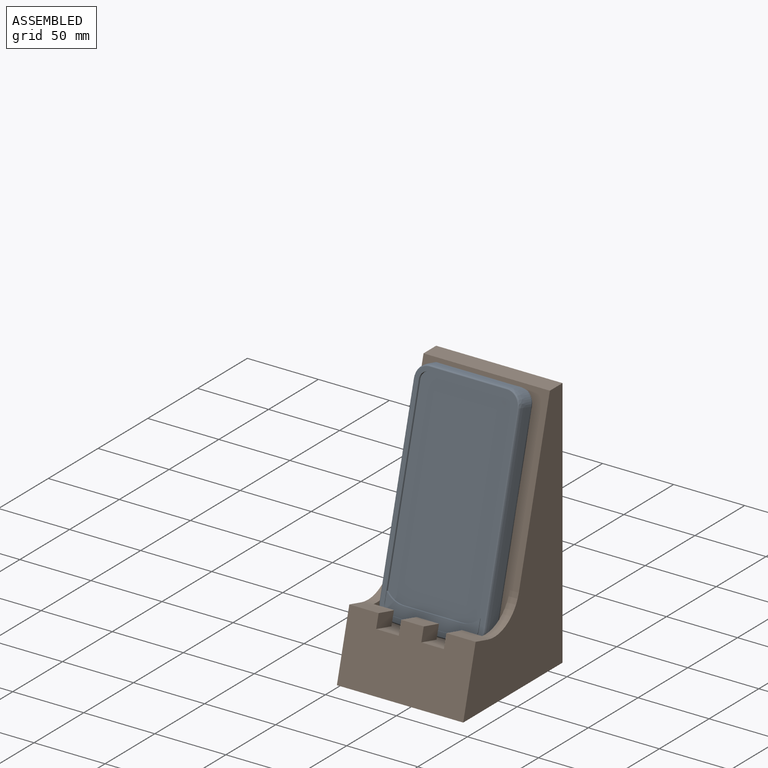
[diagram: assembled view]
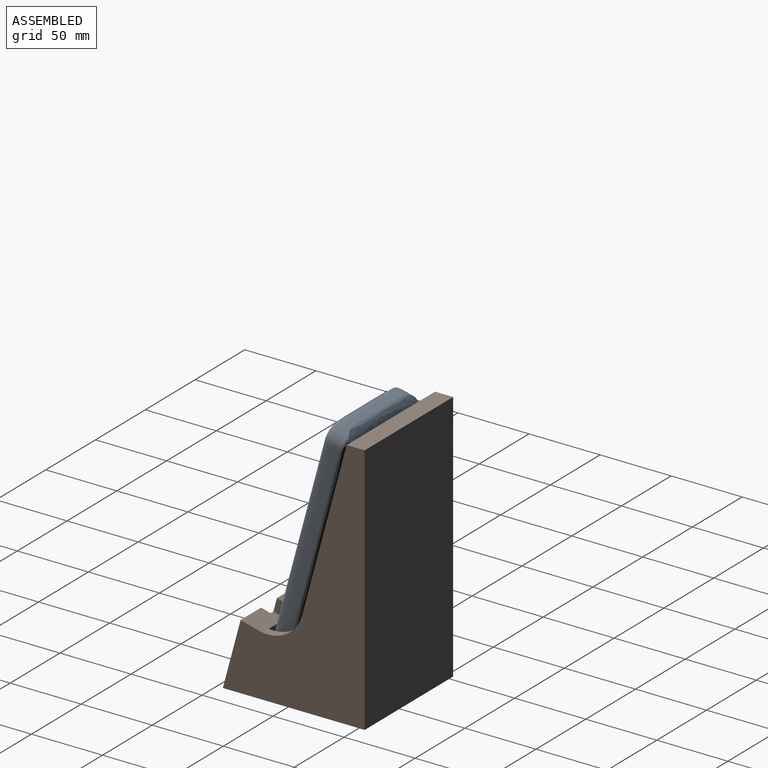
[diagram: assembled view, second angle]
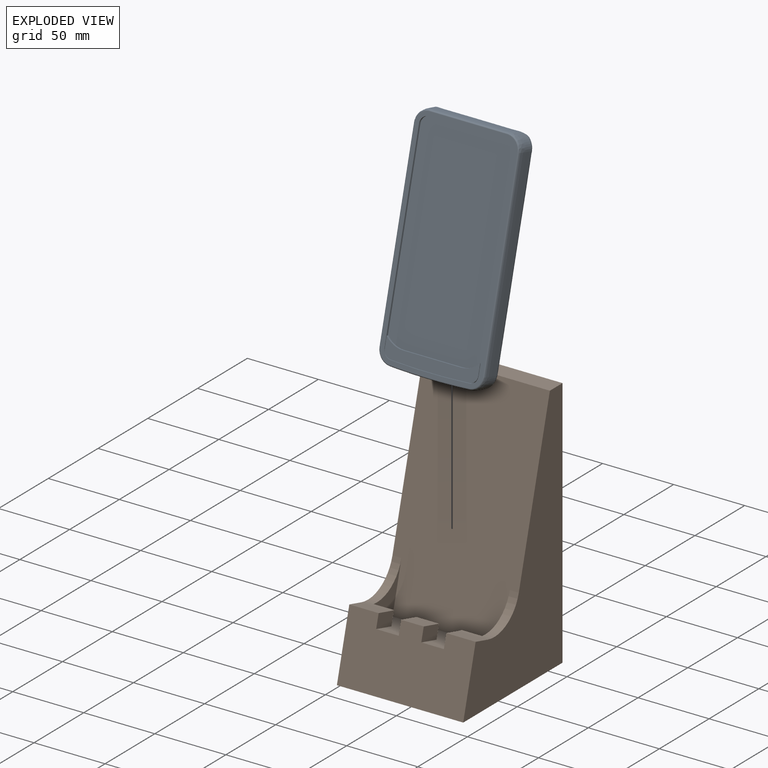
[diagram: exploded view]
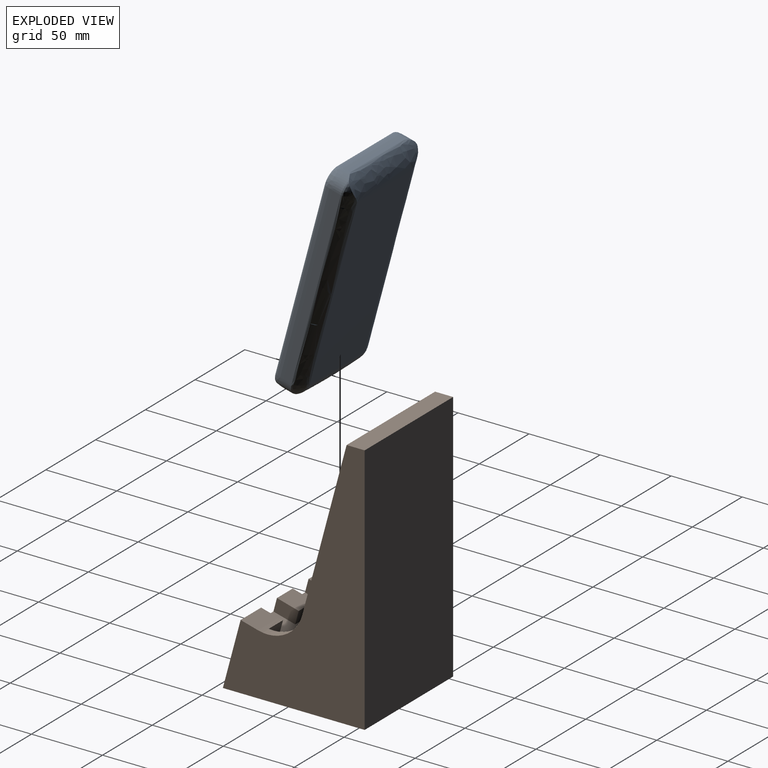
[diagram: exploded view, second angle]
ASSEMBLY  parts=2 mates=2
PART A: 51 faces, bbox 167.6x19.1x155.8 mm
  f0: cylinder r=461.27mm len=55.84mm, axis (0,1,0), area 302.4mm2, adj f11,f12,f17,f41,f44,f45,f46,f47
  f1: plane 54.61x2.54mm, normal (0,0,1), area 138.7mm2, adj f2,f3,f21,f43
  f2: cylinder r=10.16mm len=10.16mm, axis (0,1,0), area 82.4mm2, adj f1,f5,f9,f14,f43
  f3: cylinder r=10.16mm len=10.16mm, axis (0,1,0), area 82.4mm2, adj f1,f6,f13,f20,f43
  f4: bspline ~134.05x9.53mm, area 1611.9mm2, adj f5,f8,f9,f42,f43
  f5: bspline ~10.16x10.16mm, area 41.8mm2, adj f2,f4,f43
  f6: bspline ~10.16x10.16mm, area 41.8mm2, adj f3,f7,f43
  f7: bspline ~134.05x9.53mm, area 1611.9mm2, adj f6,f8,f13,f40,f43
  f8: plane 129.95x55.9mm, normal (0,1,0), area 7236.6mm2, adj f4,f7,f40,f41,f42,f43
  f9: plane 134.05x5.72mm, normal (-1,0,0), area 766.1mm2, adj f2,f4,f11,f15
  f10: plane 146.56x66.29mm, normal (0,-1,0), area 9112.3mm2, adj f23,f24,f25,f26,f27,f28,f29,f30
  f11: cylinder r=10.16mm len=10.14mm, axis (0,1,0), area 87.7mm2, adj f0,f9,f16,f42
  f12: cylinder r=10.16mm len=10.14mm, axis (0,1,0), area 87.7mm2, adj f0,f13,f18,f40
  f13: plane 134.05x5.72mm, normal (1,0,0), area 766.1mm2, adj f3,f7,f12,f19
  f14: bspline ~10.16x10.16mm, area 112.2mm2, adj f2,f15,f21,f22
  f15: bspline ~134.05x6.73mm, area 962.8mm2, adj f9,f14,f16,f22
  f16: bspline ~10.14x9.62mm, area 107.9mm2, adj f11,f15,f17,f22
  f17: bspline ~55.84x6.73mm, area 401.1mm2, adj f0,f16,f18,f22
  f18: bspline ~10.14x9.62mm, area 107.9mm2, adj f12,f17,f19,f22
  f19: bspline ~134.05x6.73mm, area 962.8mm2, adj f13,f18,f20,f22
  f20: bspline ~10.16x10.16mm, area 112.2mm2, adj f3,f19,f21,f22
  f21: bspline ~54.61x6.73mm, area 392.2mm2, adj f1,f14,f20,f22
  f22: plane 152.94x72.67mm, normal (0,-1,0), area 1291.2mm2, adj f14,f15,f16,f17,f18,f19,f20,f21
  f23: cylinder r=5.84mm len=5.84mm, axis (0,-1,0), area 14mm2, adj f10,f22,f24,f30
  f24: plane 134.05x1.52mm, normal (1,0,0), area 204.3mm2, adj f10,f22,f23,f25
  f25: cylinder r=5.84mm len=5.83mm, axis (0,-1,0), area 13.4mm2, adj f10,f22,f24,f26
  f26: cylinder r=456.95mm len=55.32mm, axis (0,-1,0), area 84.4mm2, adj f10,f22,f25,f27
  f27: cylinder r=5.84mm len=5.83mm, axis (0,-1,0), area 13.4mm2, adj f10,f22,f26,f28
  f28: plane 134.05x1.52mm, normal (-1,0,0), area 204.3mm2, adj f10,f22,f27,f29
  f29: cylinder r=5.84mm len=5.84mm, axis (0,-1,0), area 14mm2, adj f10,f22,f28,f30
  f30: plane 54.61x1.52mm, normal (0,0,-1), area 83.2mm2, adj f10,f22,f23,f29
  f31: plane 65.79x13.92mm, normal (0,-1,0), area 549.8mm2, adj f32,f33,f34,f35,f36,f37,f38,f39
  f32: plane 7.51x1.52mm, normal (-1,0,0), area 11.4mm2, adj f10,f31,f33,f38
  f33: cylinder r=5.59mm len=5.58mm, axis (0,1,0), area 12.9mm2, adj f10,f31,f32,f34
  f34: cylinder r=456.7mm len=55.29mm, axis (0,1,0), area 84.3mm2, adj f10,f31,f33,f35
  f35: cylinder r=5.59mm len=5.58mm, axis (0,1,0), area 12.9mm2, adj f10,f31,f34,f36
  f36: plane 7.51x1.52mm, normal (1,0,0), area 11.4mm2, adj f10,f31,f35,f37
  f37: cylinder r=17.07mm len=12.7mm, axis (0,1,0), area 21.8mm2, adj f10,f31,f36,f39
  f38: cylinder r=17.07mm len=12.7mm, axis (0,1,0), area 21.8mm2, adj f10,f31,f32,f39
  f39: plane 40.39x1.52mm, normal (0,0,1), area 61.5mm2, adj f10,f31,f37,f38
  f40: bspline ~23.45x15.88mm, area 110.6mm2, adj f7,f8,f12,f41
  f41: bspline ~167.32x20.61mm, area 669.7mm2, adj f0,f8,f40,f42
  f42: bspline ~15.88x10.16mm, area 110.6mm2, adj f4,f8,f11,f41
  f43: extruded ~67.83x15.88mm, area 1245.4mm2, adj f1,f2,f3,f4,f5,f6,f7,f8
  f44: plane 6.34x1.78mm, normal (1,0,0), area 11.3mm2, adj f0,f45,f49,f50
  f45: plane 7.24x6.35mm, normal (0,1,0), area 45.9mm2, adj f0,f44,f46,f50
  f46: plane 6.34x1.78mm, normal (-1,0,0), area 11.3mm2, adj f0,f45,f47,f50
  f47: plane 6.34x0.83mm, normal (-0.61,-0.79,0), area 6.6mm2, adj f0,f46,f48,f50
  f48: plane 6.35x5.59mm, normal (0,-1,0), area 35.5mm2, adj f0,f47,f49,f50
  f49: plane 6.34x0.83mm, normal (0.61,-0.79,0), area 6.6mm2, adj f0,f44,f48,f50
  f50: plane 7.24x2.41mm, normal (0,0,-1), area 16.9mm2, adj f44,f45,f46,f47,f48,f49
PART B: 39 faces, bbox 99.8x88.9x177.8 mm
  f0: plane 99.79x88.9mm, normal (0,0,-1), area 1167.1mm2, adj f8,f9,f10,f11,f22,f30,f31,f32
  f1: plane 15.88x9.2mm, normal (-0.97,0,-0.26), area 151.2mm2, adj f4,f5,f17,f19
  f2: plane 14.29x9.39mm, normal (-0.97,0,-0.26), area 138.9mm2, adj f5,f14,f16,f20
  f3: plane 20.64x12.27mm, normal (-0.26,0,0.97), area 262.1mm2, adj f9,f11,f18,f21
  f4: plane 15.88x15.33mm, normal (-0.26,0,0.97), area 252mm2, adj f1,f9,f17,f19
  f5: plane 76.2x36.8mm, normal (-0.26,0,0.97), area 2197.6mm2, adj f1,f2,f6,f9,f12,f13,f14,f16
  f6: plane 150.27x88.9mm, normal (0.97,0,0.26), area 13387.1mm2, adj f5,f7,f10,f11,f12,f14,f20,f21
  f7: plane 88.9x12.7mm, normal (0,0,1), area 1129mm2, adj f6,f8,f10,f11
  f8: plane 177.8x88.9mm, normal (-1,0,0), area 15806.4mm2, adj f0,f7,f10,f11
  f9: plane 88.9x46.59mm, normal (0.97,0,0.26), area 3985.3mm2, adj f0,f3,f4,f5,f10,f11,f15,f16
  f10: plane 177.8x99.79mm, normal (0,-1,0), area 8275mm2, adj f0,f6,f7,f8,f9,f15,f20
  f11: plane 177.8x99.79mm, normal (0,1,0), area 8275mm2, adj f0,f3,f6,f7,f8,f9,f21
  f12: plane 33.74x30.51mm, normal (0,-1,0), area 349.9mm2, adj f5,f6,f13,f21
  f13: plane 14.29x9.39mm, normal (-0.97,0,-0.26), area 138.9mm2, adj f5,f12,f18,f21
  f14: plane 33.74x30.51mm, normal (0,1,0), area 349.9mm2, adj f2,f5,f6,f20
  f15: plane 20.64x12.27mm, normal (-0.26,0,0.97), area 262.1mm2, adj f9,f10,f16,f20
  f16: plane 17.85x13.31mm, normal (0,1,0), area 151.4mm2, adj f2,f5,f9,f15,f20
  f17: plane 17.8x13.31mm, normal (0,-1,0), area 151.2mm2, adj f1,f4,f5,f9
  f18: plane 17.85x13.31mm, normal (0,-1,0), area 151.4mm2, adj f3,f5,f9,f13,f21
  f19: plane 17.8x13.31mm, normal (0,1,0), area 151.2mm2, adj f1,f4,f5,f9
  f20: cylinder r=25.4mm len=31.11mm, axis (0,1,0), area 298.8mm2, adj f2,f6,f10,f14,f15,f16
  f21: cylinder r=25.4mm len=31.11mm, axis (0,1,0), area 298.8mm2, adj f3,f6,f11,f12,f13,f18
  f22: plane 174.63x93.32mm, normal (0,1,0), area 6540.8mm2, adj f0,f24,f27,f28,f29,f30,f31,f34
  f23: plane 9.53x9.2mm, normal (0.97,0,0.26), area 90.7mm2, adj f26,f27,f36,f38
  f24: plane 14.29x9.2mm, normal (0.97,0,0.26), area 136.1mm2, adj f22,f27,f34,f35
  f25: plane 14.29x9.2mm, normal (0.26,0,-0.97), area 136.1mm2, adj f31,f32,f33,f37
  f26: plane 9.53x9.2mm, normal (0.26,0,-0.97), area 90.7mm2, adj f23,f31,f36,f38
  f27: plane 82.55x36.8mm, normal (0.26,0,-0.97), area 2782.3mm2, adj f22,f23,f24,f28,f31,f32,f33,f35
  f28: plane 150.99x82.55mm, normal (-0.97,0,-0.26), area 12903.7mm2, adj f22,f27,f29,f32
  f29: plane 82.55x7.09mm, normal (0,0,-1), area 585.2mm2, adj f22,f28,f30,f32
  f30: plane 174.63x82.55mm, normal (1,0,0), area 14415.3mm2, adj f0,f22,f29,f32
  f31: plane 82.55x42.7mm, normal (-0.97,0,-0.26), area 3225.8mm2, adj f0,f22,f25,f26,f27,f32,f34,f35
  f32: plane 174.63x93.32mm, normal (0,-1,0), area 6540.8mm2, adj f0,f25,f27,f28,f29,f30,f31,f33
  f33: plane 14.29x9.2mm, normal (0.97,0,0.26), area 136.1mm2, adj f25,f27,f32,f37
  f34: plane 14.29x9.2mm, normal (0.26,0,-0.97), area 136.1mm2, adj f22,f24,f31,f35
  f35: plane 11.67x11.67mm, normal (0,-1,0), area 90.7mm2, adj f24,f27,f31,f34
  f36: plane 11.67x11.67mm, normal (0,1,0), area 90.7mm2, adj f23,f26,f27,f31
  f37: plane 11.67x11.67mm, normal (0,1,0), area 90.7mm2, adj f25,f27,f31,f33
  f38: plane 11.67x11.67mm, normal (0,-1,0), area 90.7mm2, adj f23,f26,f27,f31
PLACE A rot(axis=(-1,0,0),15deg) t=(96.74,155.68,146.87)mm
PLACE B rot(axis=(0,0,-1),90deg) t=(96.65,208.25,117.87)mm fixed
MATE parallel B.f10 <-> A.f9  axis (-1,0,0) through (52.2,176.04,177.35)mm
MATE planar A.f8 <-> B.f6  axis (0,0.97,-0.26) through (96.74,174.58,217.42)mm
